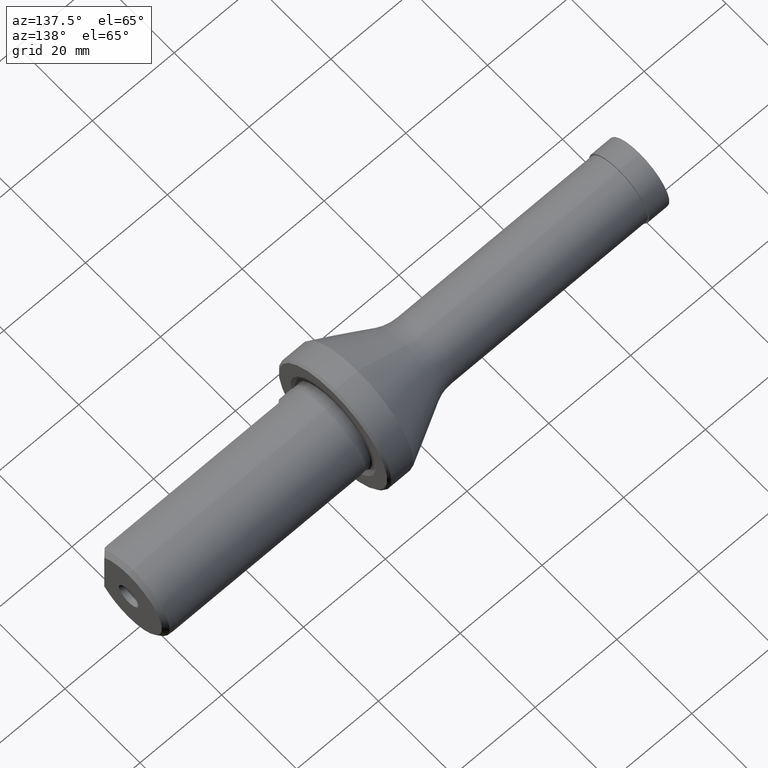
[diagram: clean part render]
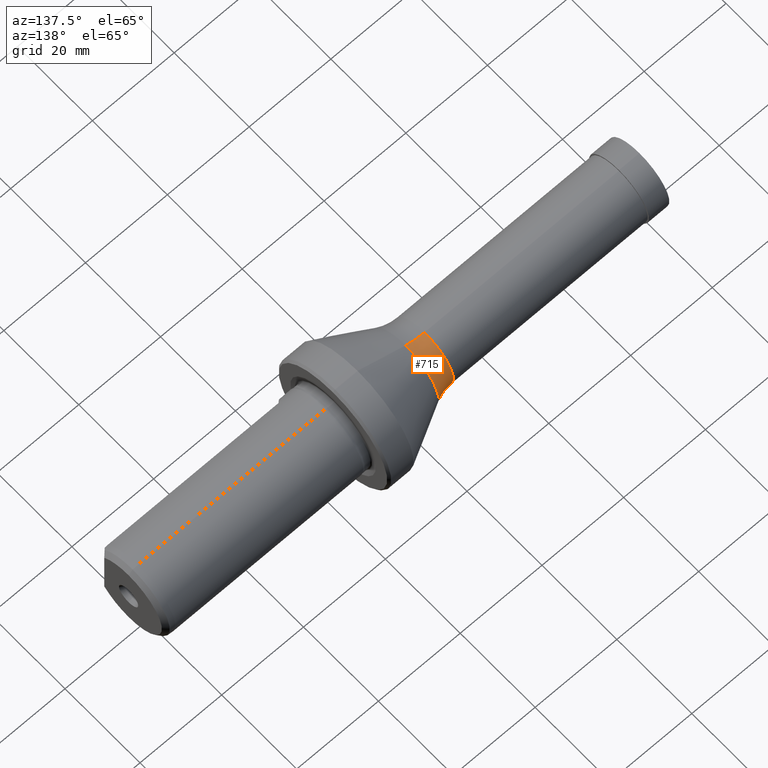
[diagram: same view with one face highlighted and labeled with its STEP entity id]
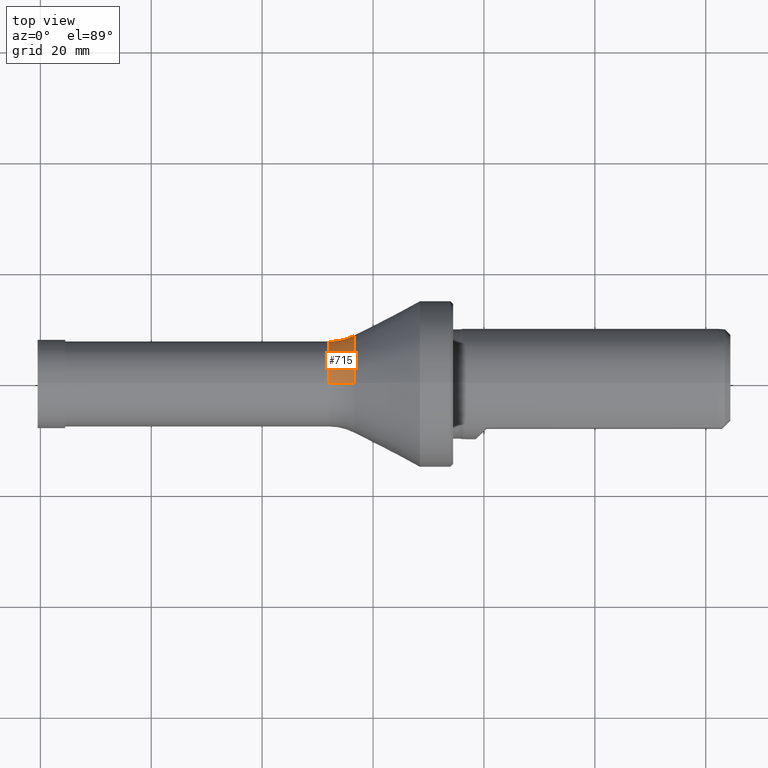
[diagram: same view with one face highlighted and labeled with its STEP entity id]
A machine part, auxiliary view. The second image highlights one B-rep face of the part: STEP entity #715.
A second angle (top view) of the same face is appended — the face is thin or edge-on in the first view.
In plain terms, the highlighted toroidal blend (fillet) surface has major radius 17.7 mm and minor (blend) radius 10 mm.
Its self-contained STEP definition (entity closure, byte-faithful):
#5 = VERTEX_POINT ( 'NONE', #1085 ) ;
#22 = EDGE_LOOP ( 'NONE', ( #475, #226, #872, #114 ) ) ;
#29 = TOROIDAL_SURFACE ( 'NONE', #732, 17.69999999999999900, 9.999999999999998200 ) ;
#95 = DIRECTION ( 'NONE',  ( 0.0000000000000000000, 0.0000000000000000000, 1.000000000000000000 ) ) ;
#114 = ORIENTED_EDGE ( 'NONE', *, *, #1211, .T. ) ;
#121 = AXIS2_PLACEMENT_3D ( 'NONE', #669, #850, #762 ) ;
#146 = CARTESIAN_POINT ( 'NONE',  ( 52.06400000000000000, 2.167624834490815400E-015, -17.69999999999999900 ) ) ;
#153 = VERTEX_POINT ( 'NONE', #646 ) ;
#226 = ORIENTED_EDGE ( 'NONE', *, *, #1084, .F. ) ;
#242 = AXIS2_PLACEMENT_3D ( 'NONE', #976, #1069, #404 ) ;
#275 = CIRCLE ( 'NONE', #871, 8.843447547925066500 ) ;
#281 = DIRECTION ( 'NONE',  ( -1.000000000000000000, -0.0000000000000000000, -0.0000000000000000000 ) ) ;
#290 = CIRCLE ( 'NONE', #242, 7.700000000000000200 ) ;
#380 = CARTESIAN_POINT ( 'NONE',  ( 56.70743393014754500, 0.0000000000000000000, 8.843447547925066500 ) ) ;
#401 = EDGE_CURVE ( 'NONE', #802, #742, #617, .T. ) ;
#404 = DIRECTION ( 'NONE',  ( 0.0000000000000000000, 0.0000000000000000000, 1.000000000000000000 ) ) ;
#438 = DIRECTION ( 'NONE',  ( 0.0000000000000000000, 0.0000000000000000000, 1.000000000000000000 ) ) ;
#475 = ORIENTED_EDGE ( 'NONE', *, *, #1004, .F. ) ;
#516 = DIRECTION ( 'NONE',  ( 0.0000000000000000000, -1.224646799147353200E-016, 1.000000000000000000 ) ) ;
#617 = CIRCLE ( 'NONE', #121, 9.999999999999998200 ) ;
#646 = CARTESIAN_POINT ( 'NONE',  ( 52.06400000000000000, 9.429780353434619000E-016, -7.700000000000000200 ) ) ;
#647 = CARTESIAN_POINT ( 'NONE',  ( 52.06400000000000000, 0.0000000000000000000, 7.700000000000000200 ) ) ;
#666 = CARTESIAN_POINT ( 'NONE',  ( 52.06400000000000000, 0.0000000000000000000, 0.0000000000000000000 ) ) ;
#669 = CARTESIAN_POINT ( 'NONE',  ( 52.06400000000000000, 0.0000000000000000000, 17.69999999999999900 ) ) ;
#706 = DIRECTION ( 'NONE',  ( -0.0000000000000000000, 1.000000000000000000, 1.224646799147353200E-016 ) ) ;
#715 = ADVANCED_FACE ( 'NONE', ( #1228 ), #29, .F. ) ;
#732 = AXIS2_PLACEMENT_3D ( 'NONE', #666, #776, #95 ) ;
#742 = VERTEX_POINT ( 'NONE', #380 ) ;
#762 = DIRECTION ( 'NONE',  ( 0.0000000000000000000, 0.0000000000000000000, -1.000000000000000000 ) ) ;
#772 = CIRCLE ( 'NONE', #1083, 9.999999999999998200 ) ;
#776 = DIRECTION ( 'NONE',  ( -1.000000000000000000, -0.0000000000000000000, -0.0000000000000000000 ) ) ;
#802 = VERTEX_POINT ( 'NONE', #647 ) ;
#804 = CARTESIAN_POINT ( 'NONE',  ( 56.70743393014754500, 0.0000000000000000000, 0.0000000000000000000 ) ) ;
#850 = DIRECTION ( 'NONE',  ( 0.0000000000000000000, -1.000000000000000000, 0.0000000000000000000 ) ) ;
#871 = AXIS2_PLACEMENT_3D ( 'NONE', #804, #281, #438 ) ;
#872 = ORIENTED_EDGE ( 'NONE', *, *, #401, .T. ) ;
#976 = CARTESIAN_POINT ( 'NONE',  ( 52.06400000000000000, 0.0000000000000000000, 0.0000000000000000000 ) ) ;
#1004 = EDGE_CURVE ( 'NONE', #153, #5, #772, .T. ) ;
#1069 = DIRECTION ( 'NONE',  ( -1.000000000000000000, -0.0000000000000000000, -0.0000000000000000000 ) ) ;
#1083 = AXIS2_PLACEMENT_3D ( 'NONE', #146, #706, #516 ) ;
#1084 = EDGE_CURVE ( 'NONE', #802, #153, #290, .T. ) ;
#1085 = CARTESIAN_POINT ( 'NONE',  ( 56.70743393014754500, 1.083009973299394400E-015, -8.843447547925066500 ) ) ;
#1211 = EDGE_CURVE ( 'NONE', #742, #5, #275, .T. ) ;
#1228 = FACE_OUTER_BOUND ( 'NONE', #22, .T. ) ;